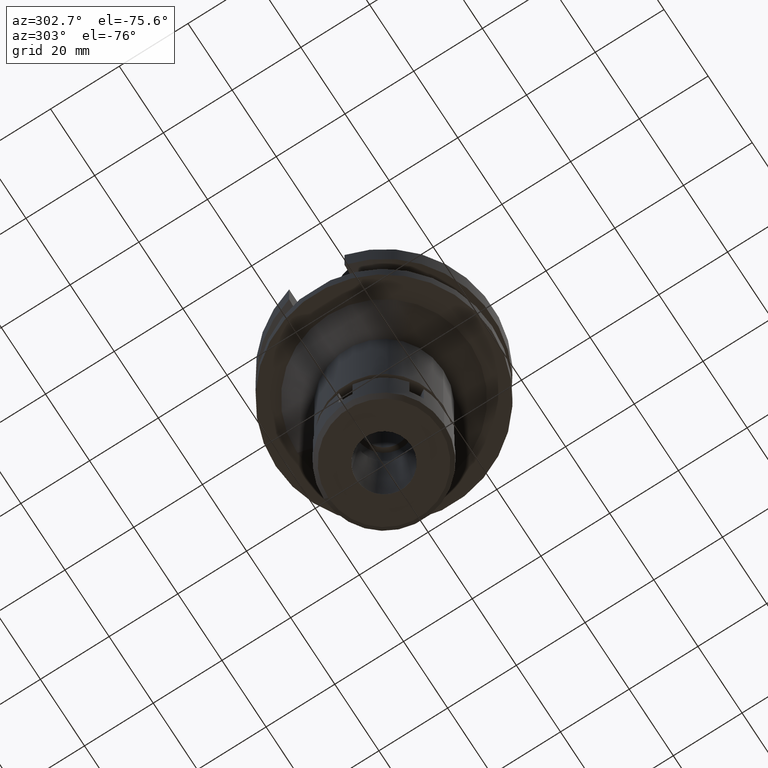
[diagram: clean part render]
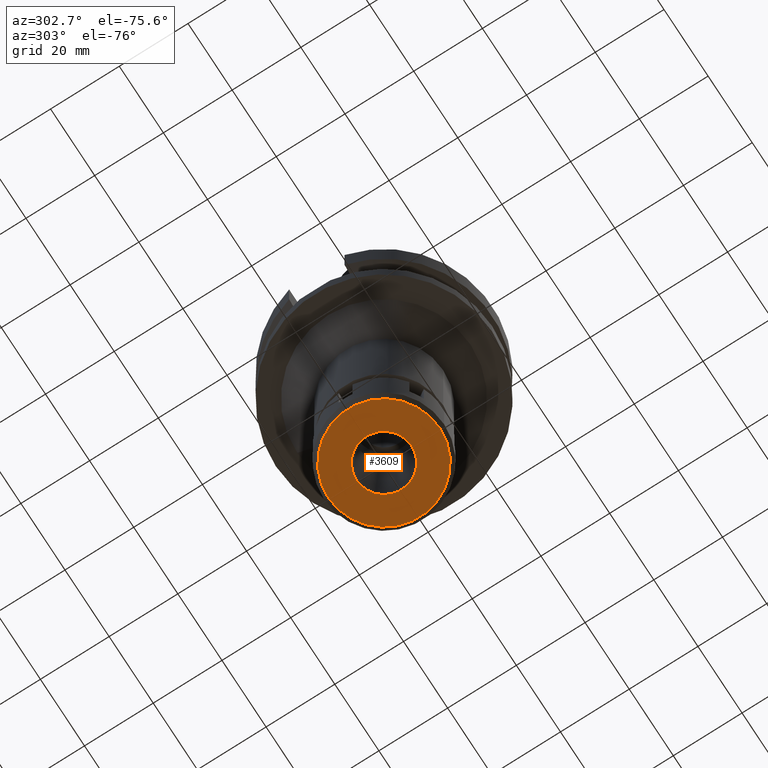
[diagram: same view with one face highlighted and labeled with its STEP entity id]
A machine part, auxiliary view. The second image highlights one B-rep face of the part: STEP entity #3609.
In plain terms, the highlighted planar face has unit normal (0, 0, -1).
Its self-contained STEP definition (entity closure, byte-faithful):
#123 = CARTESIAN_POINT ( 'NONE',  ( 0.0000000000000000000, 16.25000000000000000, -16.00000000000000000 ) ) ;
#197 = DIRECTION ( 'NONE',  ( 0.0000000000000000000, 1.000000000000000000, 0.0000000000000000000 ) ) ;
#302 = EDGE_CURVE ( 'NONE', #1843, #2437, #1704, .T. ) ;
#541 = PLANE ( 'NONE',  #1945 ) ;
#558 = FACE_OUTER_BOUND ( 'NONE', #733, .T. ) ;
#733 = EDGE_LOOP ( 'NONE', ( #2289, #1130 ) ) ;
#786 = CARTESIAN_POINT ( 'NONE',  ( 0.0000000000000000000, -16.25000000000000000, -16.00000000000000000 ) ) ;
#816 = EDGE_LOOP ( 'NONE', ( #3508, #3211 ) ) ;
#836 = EDGE_CURVE ( 'NONE', #2437, #1843, #3335, .T. ) ;
#862 = DIRECTION ( 'NONE',  ( 0.0000000000000000000, 0.0000000000000000000, 1.000000000000000000 ) ) ;
#936 = VERTEX_POINT ( 'NONE', #3340 ) ;
#1130 = ORIENTED_EDGE ( 'NONE', *, *, #836, .F. ) ;
#1328 = CARTESIAN_POINT ( 'NONE',  ( 0.0000000000000000000, 0.0000000000000000000, -16.00000000000000000 ) ) ;
#1422 = CARTESIAN_POINT ( 'NONE',  ( 0.0000000000000000000, 0.0000000000000000000, -16.00000000000000000 ) ) ;
#1615 = DIRECTION ( 'NONE',  ( 0.0000000000000000000, 0.0000000000000000000, -1.000000000000000000 ) ) ;
#1704 = CIRCLE ( 'NONE', #3579, 16.25000000000000000 ) ;
#1829 = DIRECTION ( 'NONE',  ( 0.0000000000000000000, -1.000000000000000000, 0.0000000000000000000 ) ) ;
#1843 = VERTEX_POINT ( 'NONE', #123 ) ;
#1882 = EDGE_CURVE ( 'NONE', #936, #2743, #2589, .T. ) ;
#1945 = AXIS2_PLACEMENT_3D ( 'NONE', #1995, #3379, #3400 ) ;
#1995 = CARTESIAN_POINT ( 'NONE',  ( 0.0000000000000000000, 0.0000000000000000000, -16.00000000000000000 ) ) ;
#2220 = CARTESIAN_POINT ( 'NONE',  ( 0.0000000000000000000, 0.0000000000000000000, -16.00000000000000000 ) ) ;
#2289 = ORIENTED_EDGE ( 'NONE', *, *, #302, .F. ) ;
#2437 = VERTEX_POINT ( 'NONE', #786 ) ;
#2589 = CIRCLE ( 'NONE', #2767, 8.000000000000000000 ) ;
#2621 = CIRCLE ( 'NONE', #2859, 8.000000000000000000 ) ;
#2743 = VERTEX_POINT ( 'NONE', #3501 ) ;
#2751 = DIRECTION ( 'NONE',  ( 0.0000000000000000000, 0.0000000000000000000, 1.000000000000000000 ) ) ;
#2767 = AXIS2_PLACEMENT_3D ( 'NONE', #1328, #1615, #197 ) ;
#2779 = FACE_BOUND ( 'NONE', #816, .T. ) ;
#2859 = AXIS2_PLACEMENT_3D ( 'NONE', #3017, #3511, #1829 ) ;
#2935 = DIRECTION ( 'NONE',  ( 0.0000000000000000000, 1.000000000000000000, 0.0000000000000000000 ) ) ;
#3017 = CARTESIAN_POINT ( 'NONE',  ( 0.0000000000000000000, 0.0000000000000000000, -16.00000000000000000 ) ) ;
#3083 = DIRECTION ( 'NONE',  ( 0.0000000000000000000, -1.000000000000000000, 0.0000000000000000000 ) ) ;
#3154 = AXIS2_PLACEMENT_3D ( 'NONE', #2220, #2751, #3083 ) ;
#3211 = ORIENTED_EDGE ( 'NONE', *, *, #3380, .F. ) ;
#3335 = CIRCLE ( 'NONE', #3154, 16.25000000000000000 ) ;
#3340 = CARTESIAN_POINT ( 'NONE',  ( 0.0000000000000000000, 8.000000000000000000, -16.00000000000000000 ) ) ;
#3379 = DIRECTION ( 'NONE',  ( 0.0000000000000000000, 0.0000000000000000000, -1.000000000000000000 ) ) ;
#3380 = EDGE_CURVE ( 'NONE', #2743, #936, #2621, .T. ) ;
#3400 = DIRECTION ( 'NONE',  ( 0.0000000000000000000, -1.000000000000000000, 0.0000000000000000000 ) ) ;
#3501 = CARTESIAN_POINT ( 'NONE',  ( 0.0000000000000000000, -8.000000000000000000, -16.00000000000000000 ) ) ;
#3508 = ORIENTED_EDGE ( 'NONE', *, *, #1882, .F. ) ;
#3511 = DIRECTION ( 'NONE',  ( 0.0000000000000000000, 0.0000000000000000000, -1.000000000000000000 ) ) ;
#3579 = AXIS2_PLACEMENT_3D ( 'NONE', #1422, #862, #2935 ) ;
#3609 = ADVANCED_FACE ( 'NONE', ( #558, #2779 ), #541, .T. ) ;